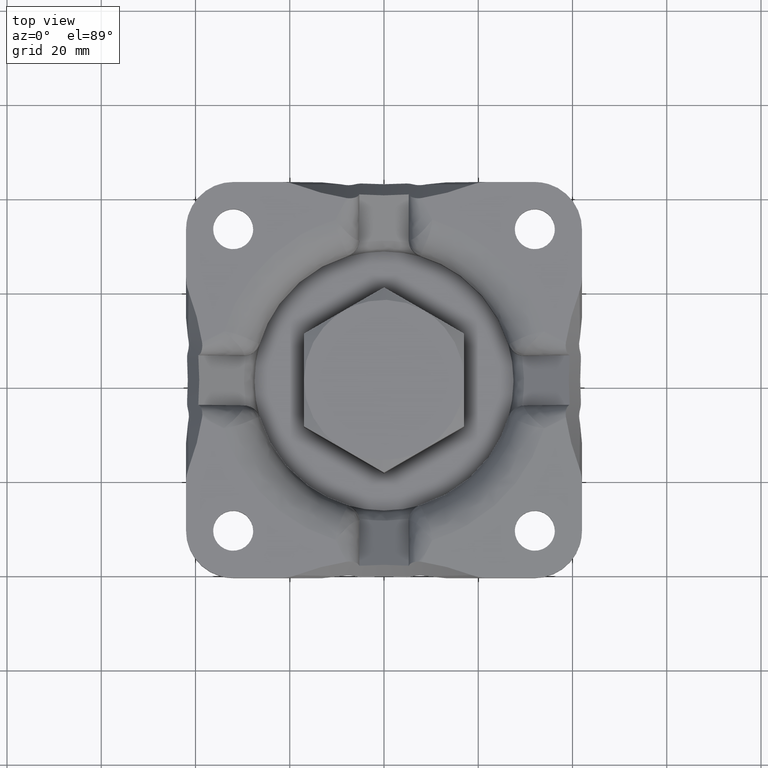
[diagram: clean part render]
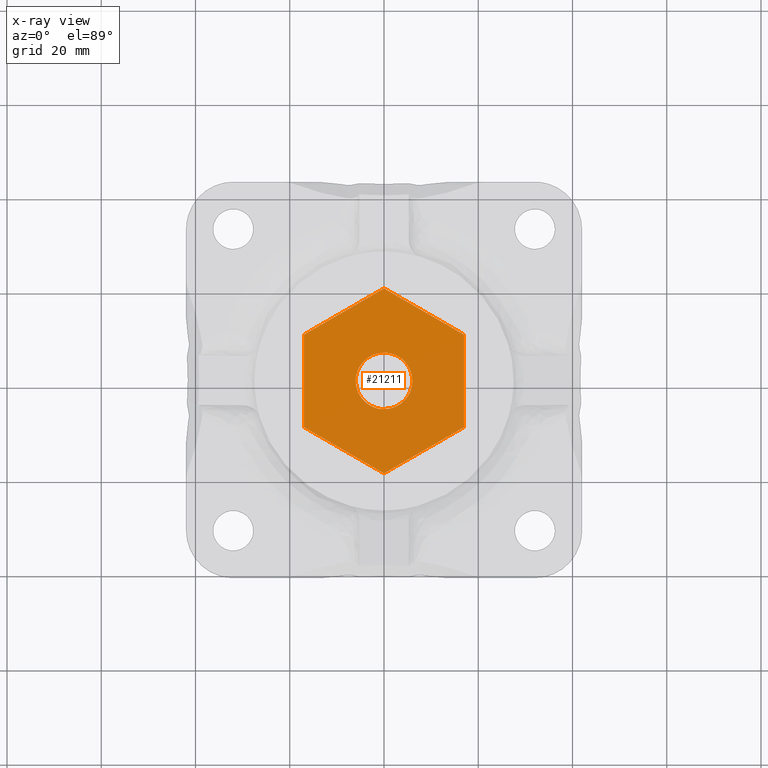
[diagram: x-ray — body ghosted, one internal face saturated and labeled with its STEP entity id]
A machine part, top view, then the same camera in x-ray: the body is ghosted and one INTERNAL B-rep face — a face not visible from any outside direction — is saturated and labeled: STEP entity #21211.
In plain terms, the highlighted face is a freeform B-spline surface patch.
Its self-contained STEP definition (entity closure, byte-faithful):
#20556=CARTESIAN_POINT('',(-0.366291237374331,-5.988808790521097,5.0));
#20557=VERTEX_POINT('',#20556);
#20563=CARTESIAN_POINT('',(-6.0,0.0,5.0));
#20564=VERTEX_POINT('',#20563);
#20565=CARTESIAN_POINT('',(-6.0,0.0,5.0));
#20566=CARTESIAN_POINT('',(-6.0,-5.644236401278196,4.999999999999999));
#20567=CARTESIAN_POINT('',(-0.366291237374328,-5.988808790521098,5.000000000000001));
#20575=(BOUNDED_CURVE()B_SPLINE_CURVE(2,(#20565,#20566,#20567),.UNSPECIFIED.,.F.,.U.)B_SPLINE_CURVE_WITH_KNOTS((3,3),(0.500000000000000,0.739332962237209),.UNSPECIFIED.)CURVE()GEOMETRIC_REPRESENTATION_ITEM()RATIONAL_B_SPLINE_CURVE((1.0,0.719603993288742,0.976072041663002))REPRESENTATION_ITEM(''));
#20576=EDGE_CURVE('',#20564,#20557,#20575,.T.);
#20578=CARTESIAN_POINT('',(0.366291237374330,5.988808790521098,5.0));
#20579=VERTEX_POINT('',#20578);
#20580=CARTESIAN_POINT('',(0.366291237374330,5.988808790521098,5.0));
#20581=CARTESIAN_POINT('',(0.183316579874359,6.000000000000001,5.0));
#20582=CARTESIAN_POINT('',(0.0,6.0,5.0));
#20583=CARTESIAN_POINT('',(-6.0,6.0,5.000000000000001));
#20584=CARTESIAN_POINT('',(-6.0,0.0,5.0));
#20592=(BOUNDED_CURVE()B_SPLINE_CURVE(2,(#20580,#20581,#20582,#20583,#20584),.UNSPECIFIED.,.F.,.U.)B_SPLINE_CURVE_WITH_KNOTS((3,2,3),(0.239332962237209,0.250000000000000,0.500000000000000),.UNSPECIFIED.)CURVE()GEOMETRIC_REPRESENTATION_ITEM()RATIONAL_B_SPLINE_CURVE((0.976072041663002,0.987502787897806,1.0,0.707106781186548,1.0))REPRESENTATION_ITEM(''));
#20593=EDGE_CURVE('',#20579,#20564,#20592,.T.);
#20623=CARTESIAN_POINT('',(6.0,0.0,5.0));
#20624=VERTEX_POINT('',#20623);
#20625=CARTESIAN_POINT('',(6.0,0.0,5.0));
#20626=CARTESIAN_POINT('',(5.999999999999999,5.644236401278193,4.999999999999999));
#20627=CARTESIAN_POINT('',(0.366291237374330,5.988808790521098,5.0));
#20635=(BOUNDED_CURVE()B_SPLINE_CURVE(2,(#20625,#20626,#20627),.UNSPECIFIED.,.F.,.U.)B_SPLINE_CURVE_WITH_KNOTS((3,3),(0.0,0.239332962237209),.UNSPECIFIED.)CURVE()GEOMETRIC_REPRESENTATION_ITEM()RATIONAL_B_SPLINE_CURVE((1.0,0.719603993288742,0.976072041663002))REPRESENTATION_ITEM(''));
#20636=EDGE_CURVE('',#20624,#20579,#20635,.T.);
#20638=CARTESIAN_POINT('',(-0.366291237374328,-5.988808790521098,5.000000000000001));
#20639=CARTESIAN_POINT('',(-0.183316579874358,-6.000000000000001,5.000000000000001));
#20640=CARTESIAN_POINT('',(0.0,-6.0,5.0));
#20641=CARTESIAN_POINT('',(6.0,-6.0,5.000000000000001));
#20642=CARTESIAN_POINT('',(6.0,0.0,5.0));
#20650=(BOUNDED_CURVE()B_SPLINE_CURVE(2,(#20638,#20639,#20640,#20641,#20642),.UNSPECIFIED.,.F.,.U.)B_SPLINE_CURVE_WITH_KNOTS((3,2,3),(0.739332962237209,0.750000000000000,1.0),.UNSPECIFIED.)CURVE()GEOMETRIC_REPRESENTATION_ITEM()RATIONAL_B_SPLINE_CURVE((0.976072041663002,0.987502787897806,1.0,0.707106781186548,1.0))REPRESENTATION_ITEM(''));
#20651=EDGE_CURVE('',#20557,#20624,#20650,.T.);
#21059=CARTESIAN_POINT('',(17.0,9.814954999999999,5.0));
#21060=VERTEX_POINT('',#21059);
#21068=CARTESIAN_POINT('',(17.0,-9.814954000000000,5.0));
#21069=VERTEX_POINT('',#21068);
#21075=CARTESIAN_POINT('',(17.0,-9.814954000000000,5.0));
#21076=CARTESIAN_POINT('',(17.0,9.814954999999999,5.0));
#21077=QUASI_UNIFORM_CURVE('',1,(#21075,#21076),.UNSPECIFIED.,.F.,.U.);
#21078=EDGE_CURVE('',#21069,#21060,#21077,.T.);
#21091=CARTESIAN_POINT('',(0.0,-19.629909000000001,5.0));
#21092=VERTEX_POINT('',#21091);
#21098=CARTESIAN_POINT('',(0.0,-19.629909000000001,5.0));
#21099=CARTESIAN_POINT('',(17.0,-9.814954000000000,5.0));
#21100=QUASI_UNIFORM_CURVE('',1,(#21098,#21099),.UNSPECIFIED.,.F.,.U.);
#21101=EDGE_CURVE('',#21092,#21069,#21100,.T.);
#21114=CARTESIAN_POINT('',(-17.0,-9.814954000000000,5.0));
#21115=VERTEX_POINT('',#21114);
#21121=CARTESIAN_POINT('',(-17.0,-9.814954000000000,5.0));
#21122=CARTESIAN_POINT('',(0.0,-19.629909000000001,5.0));
#21123=QUASI_UNIFORM_CURVE('',1,(#21121,#21122),.UNSPECIFIED.,.F.,.U.);
#21124=EDGE_CURVE('',#21115,#21092,#21123,.T.);
#21137=CARTESIAN_POINT('',(-17.0,9.814954999999999,5.0));
#21138=VERTEX_POINT('',#21137);
#21144=CARTESIAN_POINT('',(-17.0,9.814954999999999,5.0));
#21145=CARTESIAN_POINT('',(-17.0,-9.814954000000000,5.0));
#21146=QUASI_UNIFORM_CURVE('',1,(#21144,#21145),.UNSPECIFIED.,.F.,.U.);
#21147=EDGE_CURVE('',#21138,#21115,#21146,.T.);
#21160=CARTESIAN_POINT('',(0.0,19.629909000000001,5.0));
#21161=VERTEX_POINT('',#21160);
#21167=CARTESIAN_POINT('',(0.0,19.629909000000001,5.0));
#21168=CARTESIAN_POINT('',(-17.0,9.814954999999999,5.0));
#21169=QUASI_UNIFORM_CURVE('',1,(#21167,#21168),.UNSPECIFIED.,.F.,.U.);
#21170=EDGE_CURVE('',#21161,#21138,#21169,.T.);
#21184=CARTESIAN_POINT('',(17.0,9.814954999999999,5.0));
#21185=CARTESIAN_POINT('',(0.0,19.629909000000001,5.0));
#21186=QUASI_UNIFORM_CURVE('',1,(#21184,#21185),.UNSPECIFIED.,.F.,.U.);
#21187=EDGE_CURVE('',#21060,#21161,#21186,.T.);
#21192=CARTESIAN_POINT('',(-18.698299934101399,21.590936833006861,5.0));
#21193=CARTESIAN_POINT('',(18.698300846052469,21.590936833006861,5.0));
#21194=CARTESIAN_POINT('',(-18.698299934101399,-21.590937886037239,5.0));
#21195=CARTESIAN_POINT('',(18.698300846052469,-21.590937886037239,5.0));
#21196=B_SPLINE_SURFACE_WITH_KNOTS('',1,1,((#21192,#21194),(#21193,#21195)),.UNSPECIFIED.,.F.,.F.,.U.,(2,2),(2,2),(0.0,37.396600780153882),(0.0,43.181874719044089),.UNSPECIFIED.);
#21197=ORIENTED_EDGE('',*,*,#21187,.F.);
#21198=ORIENTED_EDGE('',*,*,#21078,.F.);
#21199=ORIENTED_EDGE('',*,*,#21101,.F.);
#21200=ORIENTED_EDGE('',*,*,#21124,.F.);
#21201=ORIENTED_EDGE('',*,*,#21147,.F.);
#21202=ORIENTED_EDGE('',*,*,#21170,.F.);
#21203=EDGE_LOOP('',(#21197,#21198,#21199,#21200,#21201,#21202));
#21204=FACE_OUTER_BOUND('',#21203,.T.);
#21205=ORIENTED_EDGE('',*,*,#20576,.T.);
#21206=ORIENTED_EDGE('',*,*,#20651,.T.);
#21207=ORIENTED_EDGE('',*,*,#20636,.T.);
#21208=ORIENTED_EDGE('',*,*,#20593,.T.);
#21209=EDGE_LOOP('',(#21205,#21206,#21207,#21208));
#21210=FACE_BOUND('',#21209,.T.);
#21211=ADVANCED_FACE('',(#21204,#21210),#21196,.T.);